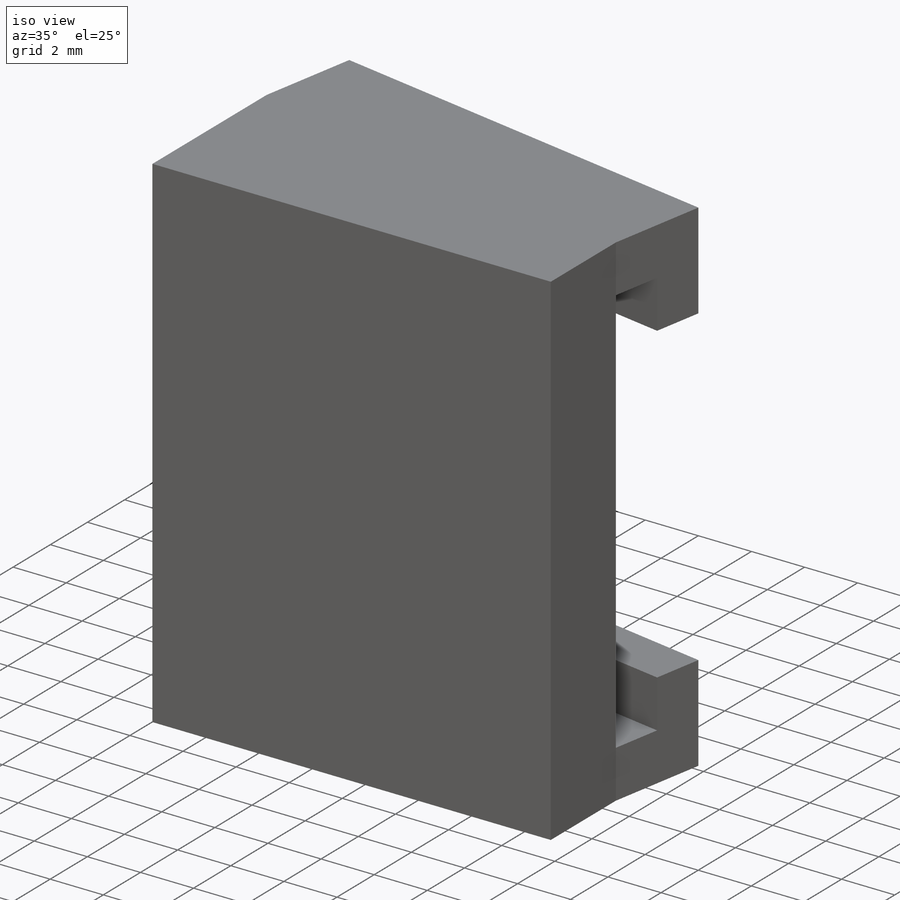
[diagram: iso view]
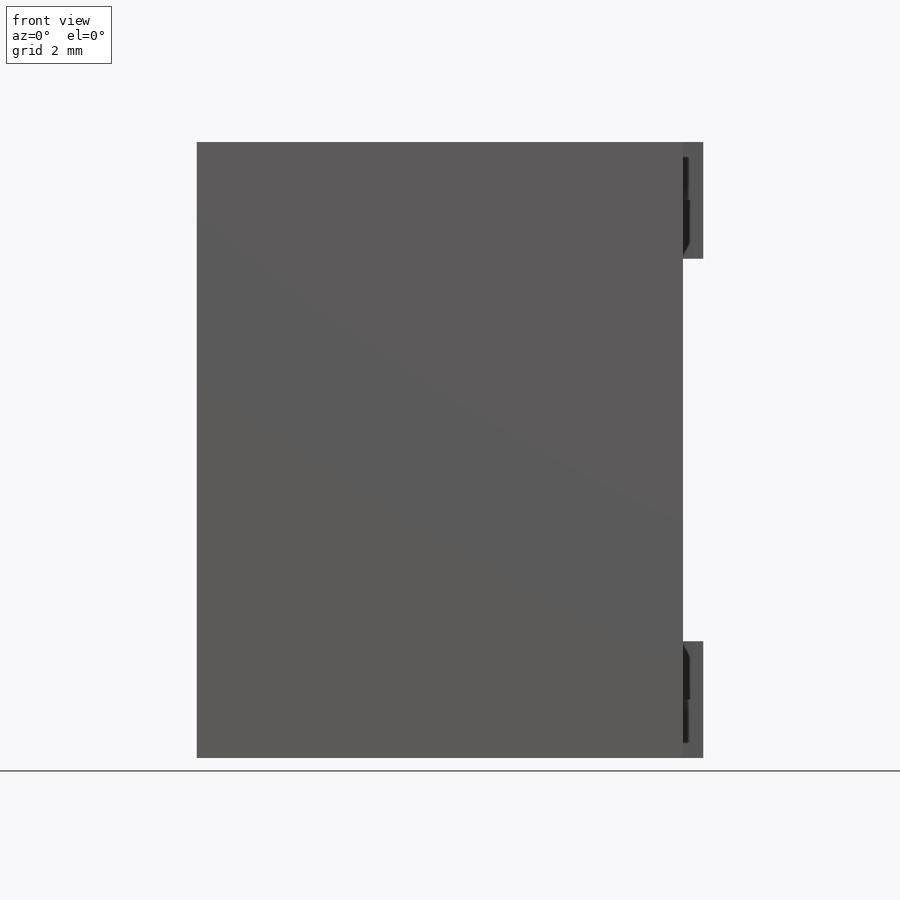
[diagram: front view]
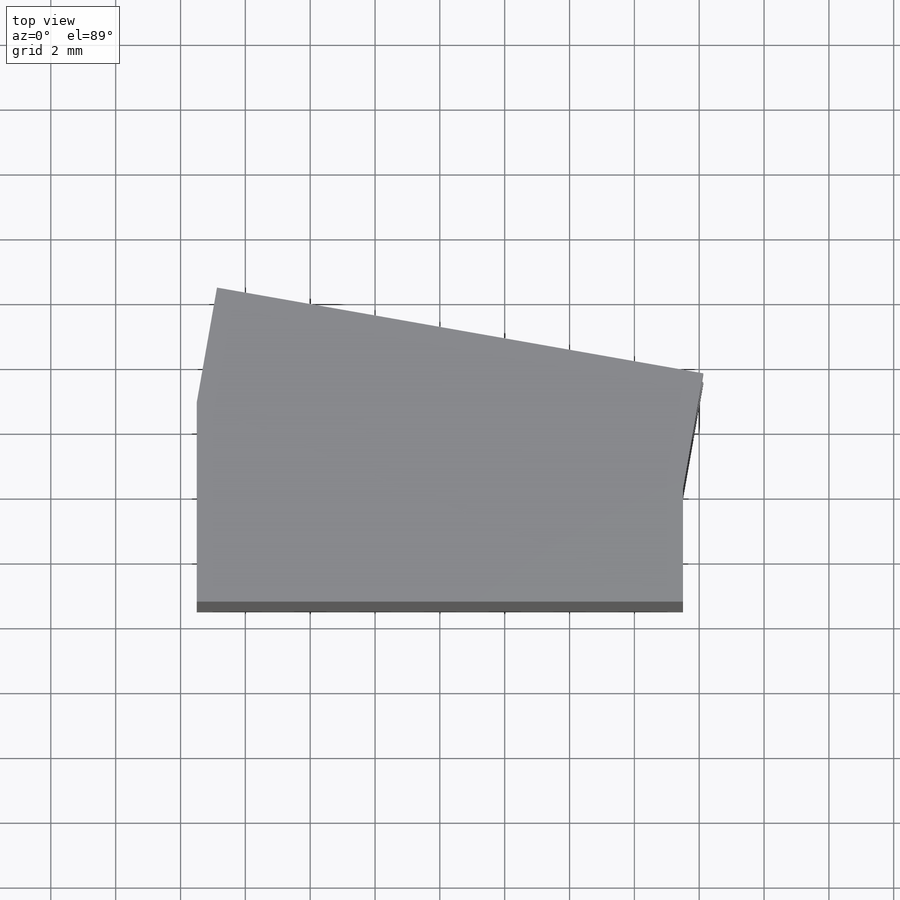
[diagram: top view]
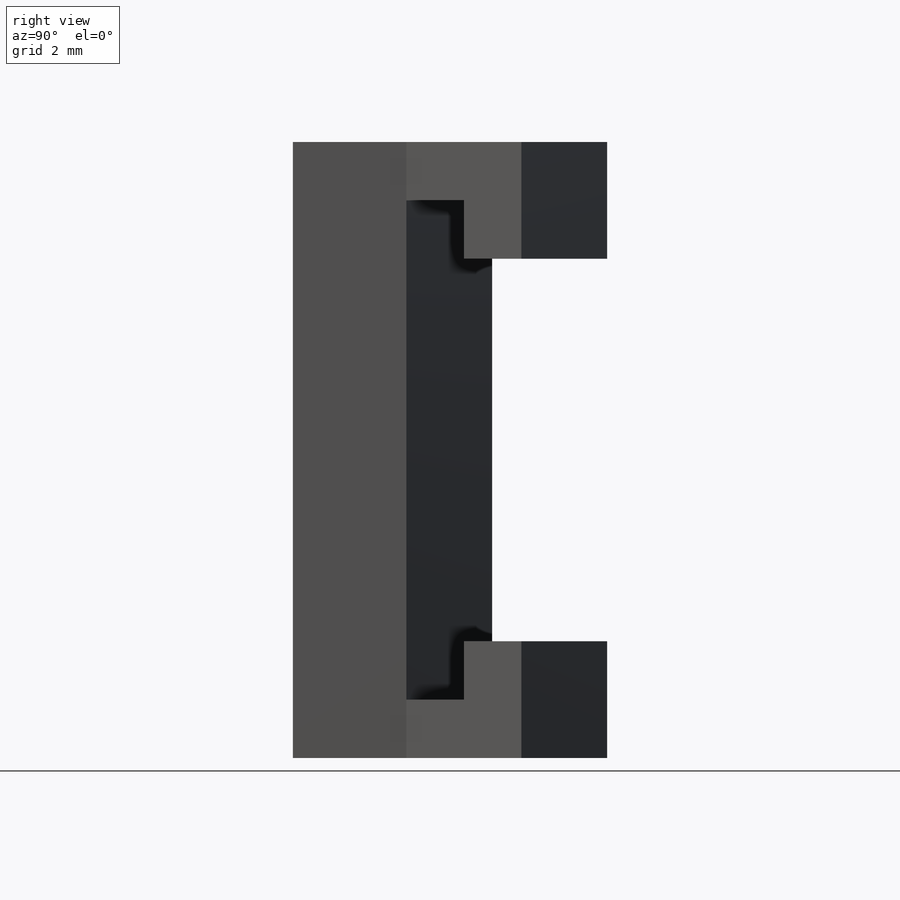
[diagram: right view]
SOLIDWORKS PART (.sldprt)
format: sldprt  version: not decoded by parser v0  size: 212,992 bytes
history: native  units: mm
features: sketch x7, extrude x6, plane x3, material x1, cut_extrude x1 (+10 scaffold rows collapsed)
feature tree (28):
  scaffold x10  (default folders/planes/origin — collapsed)
  material  "Material <nicht festgelegt>"
  plane  "Ebene vorne"
  plane  "Ebene oben"
  plane  "Ebene rechts"
  sketch  "Skizze1"  dims[D1=15.0mm D2=19.0mm]
  extrude  "Aufsatz-Linear austragen1"  Depth=3mm
  sketch  "Skizze3"  dims[c1.D1=15.0mm c2.D1=10.0deg]
  extrude  "Aufsatz-Linear austragen2"  Depth=19mm
  sketch  "Skizze5"  dims[D1=6.0mm D2=1.5mm]
  cut_extrude  "Schnitt-Linear austragen1"  Depth=3mm
  sketch  "Skizze6"  dims[D1=0.0mm]
  extrude  "Aufsatz-Linear austragen3"  Depth=0.5mm
  sketch  "Skizze7"  dims[D1=1.8mm D2=1.8mm]
  extrude  "Aufsatz-Linear austragen4"  Depth=3.6mm
  sketch  "Skizze9"  dims[D1=1.8mm]
  sketch  "Skizze10"
  extrude  "Aufsatz-Linear austragen5"  Depth=1.8mm
  extrude  "Aufsatz-Linear austragen6"  Depth=1.8mm
decode coverage: 13 of 14 modeling features carry decoded parameters
note: suppression state not decoded; provenance and decode notes live in map.json
